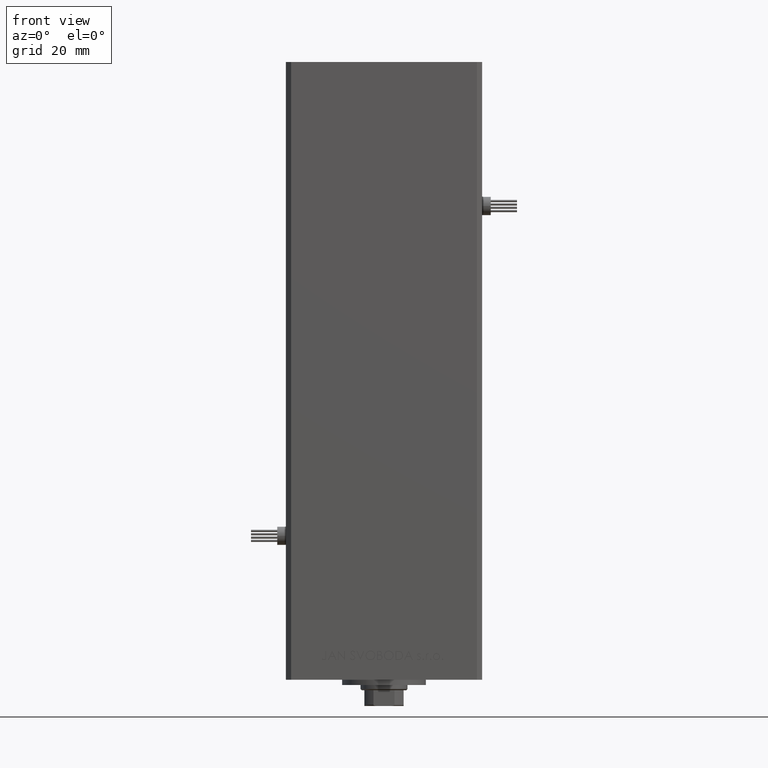
[diagram: clean part render]
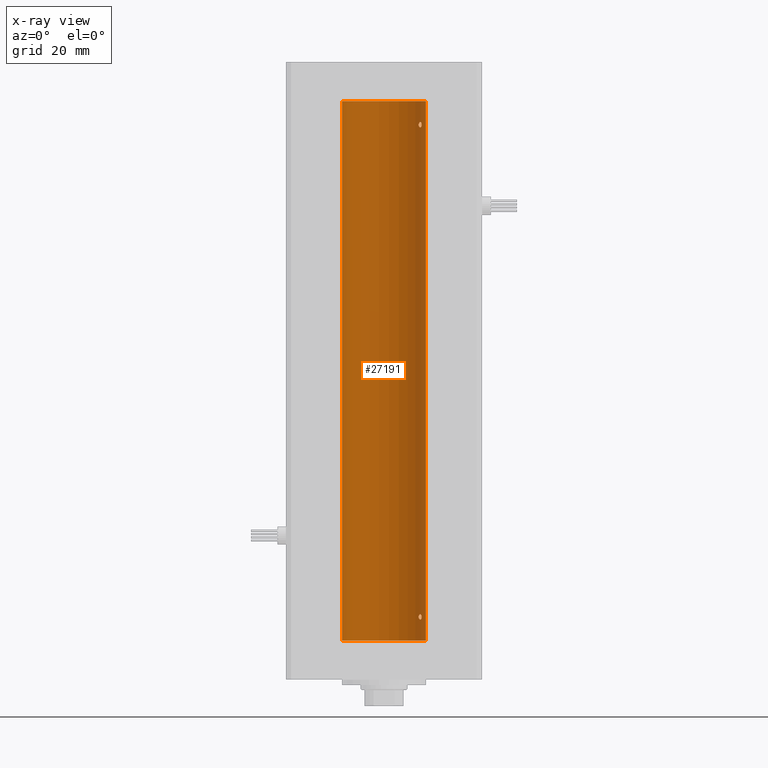
[diagram: x-ray — body ghosted, one internal face saturated and labeled with its STEP entity id]
A machine part, front view, then the same camera in x-ray: the body is ghosted and one INTERNAL B-rep face — a face not visible from any outside direction — is saturated and labeled: STEP entity #27191.
In plain terms, the highlighted cylindrical surface (partial cylindrical patch) has radius 16 mm, axis along (-0, -0, -1).
Its self-contained STEP definition (entity closure, byte-faithful):
#601 = CARTESIAN_POINT ( 'NONE',  ( 13.77746685470184929, 8.136441676695655545, 196.0017131429554524 ) ) ;
#855 = CARTESIAN_POINT ( 'NONE',  ( 14.27574973237574874, 7.225997637813491359, 196.3530782107463324 ) ) ;
#1086 = CARTESIAN_POINT ( 'NONE',  ( 13.32447566991143617, 8.857922402414489582, 197.5314381199037541 ) ) ;
#1112 = CARTESIAN_POINT ( 'NONE',  ( 14.38749456993875775, 6.999999999998771649, 196.9999999999994600 ) ) ;
#1595 = CARTESIAN_POINT ( 'NONE',  ( 14.38749456993835807, 6.999999999999900524, 197.1411069770375093 ) ) ;
#2099 = DIRECTION ( 'NONE',  ( -0.000000000000000000, -0.000000000000000000, -1.000000000000000000 ) ) ;
#2127 = CARTESIAN_POINT ( 'NONE',  ( 13.98853479819182866, 7.771757428685186042, 198.0036593920346775 ) ) ;
#2164 = B_SPLINE_CURVE_WITH_KNOTS ( 'NONE', 3,
 ( #28622, #12244, #15410, #23866, #27835, #47961, #11720, #15674, #7470, #47707, #43997, #11466, #7728, #27576, #32325, #32068, #28093, #19904, #40022, #43740 ),
 .UNSPECIFIED., .F., .F.,
 ( 4, 2, 2, 2, 2, 2, 2, 2, 2, 4 ),
 ( 0.000000000000000000, 0.0004221896201403055413, 0.0008443792402806110826, 0.001266568860420916624, 0.001688758480561222165, 0.002110948100701527490, 0.002533137720841833248, 0.002955327340982138572, 0.003166422151052288633, 0.003377516961122438259 ),
 .UNSPECIFIED. ) ;
#2316 = CARTESIAN_POINT ( 'NONE',  ( 13.32447566991143439, 8.857922402414480700, 9.531438119903825168 ) ) ;
#2570 = CARTESIAN_POINT ( 'NONE',  ( 13.55739033881265065, 8.499771822136686694, 9.902983336413296200 ) ) ;
#3303 = CIRCLE ( 'NONE', #36267, 16.00000000000000000 ) ;
#3354 = CARTESIAN_POINT ( 'NONE',  ( 14.27601081693604712, 7.225489892961965310, 9.646446674983275571 ) ) ;
#3867 = CARTESIAN_POINT ( 'NONE',  ( 13.22875655532295625, 9.000000000000000000, 9.142659515501296852 ) ) ;
#4095 = VERTEX_POINT ( 'NONE', #50388 ) ;
#4285 = CARTESIAN_POINT ( 'NONE',  ( 13.49787029139622696, 8.591848682073997878, 196.1838145871425638 ) ) ;
#4553 = CARTESIAN_POINT ( 'NONE',  ( 13.32443414199769194, 8.857985377928093484, 196.4686058303161076 ) ) ;
#4809 = CARTESIAN_POINT ( 'NONE',  ( 14.17516445690067250, 7.421373518623910037, 196.1736956655493884 ) ) ;
#5064 = CARTESIAN_POINT ( 'NONE',  ( 14.36932461189096877, 7.037242368448795915, 196.7207139776694191 ) ) ;
#5143 = EDGE_CURVE ( 'NONE', #4095, #29154, #42732, .T. ) ;
#5194 = CARTESIAN_POINT ( 'NONE',  ( 0.000000000000000000, 0.000000000000000000, 0.000000000000000000 ) ) ;
#5463 = VERTEX_POINT ( 'NONE', #27216 ) ;
#5553 = CARTESIAN_POINT ( 'NONE',  ( 13.22875655532295092, 8.999999999999994671, 197.1426595155012365 ) ) ;
#6413 = VERTEX_POINT ( 'NONE', #34130 ) ;
#6719 = CARTESIAN_POINT ( 'NONE',  ( -16.00000000000000000, 0.000000000000000000, 206.0000000000000000 ) ) ;
#7470 = CARTESIAN_POINT ( 'NONE',  ( 13.77746685470184040, 8.136441676695669756, 8.001713142955473757 ) ) ;
#7728 = CARTESIAN_POINT ( 'NONE',  ( 14.17516445690067428, 7.421373518623910037, 8.173695665549439937 ) ) ;
#8792 = CARTESIAN_POINT ( 'NONE',  ( 13.92009581174527355, 7.889943515799701323, 195.9984609092137759 ) ) ;
#9123 = ORIENTED_EDGE ( 'NONE', *, *, #31699, .F. ) ;
#10037 = CARTESIAN_POINT ( 'NONE',  ( 16.00000000000000000, 1.959434878635765131E-15, 206.0000000000000000 ) ) ;
#10255 = EDGE_CURVE ( 'NONE', #6413, #40658, #17436, .T. ) ;
#10524 = CARTESIAN_POINT ( 'NONE',  ( 14.38749456993835807, 6.999999999999894307, 9.141106977037484427 ) ) ;
#11309 = CARTESIAN_POINT ( 'NONE',  ( 14.38749456993875953, 6.999999999998769873, 8.999999999999467093 ) ) ;
#11432 = ORIENTED_EDGE ( 'NONE', *, *, #14235, .F. ) ;
#11466 = CARTESIAN_POINT ( 'NONE',  ( 14.11701305531884287, 7.531808851198022126, 8.107366783090686368 ) ) ;
#11720 = CARTESIAN_POINT ( 'NONE',  ( 13.56526576050683452, 8.485384079562178883, 8.116990538131117816 ) ) ;
#12244 = CARTESIAN_POINT ( 'NONE',  ( 13.22875655532296157, 9.000000000000000000, 8.857026260935734641 ) ) ;
#14235 = EDGE_CURVE ( 'NONE', #29792, #5463, #15709, .T. ) ;
#15021 = CYLINDRICAL_SURFACE ( 'NONE', #42349, 16.00000000000000000 ) ;
#15410 = CARTESIAN_POINT ( 'NONE',  ( 13.25010819131475159, 8.968783812673564171, 8.717198662283735189 ) ) ;
#15674 = CARTESIAN_POINT ( 'NONE',  ( 13.70633586603034715, 8.255576010093811590, 8.025328610501505366 ) ) ;
#15709 = B_SPLINE_CURVE_WITH_KNOTS ( 'NONE', 3,
 ( #11309, #10524, #27424, #39606, #3354, #51770, #26372, #38817, #2570, #22414, #2316, #18697, #3867, #20525 ),
 .UNSPECIFIED., .F., .F.,
 ( 4, 2, 2, 2, 2, 2, 4 ),
 ( 0.003377516961122438259, 0.003798778705083848996, 0.004220040449045259733, 0.005062563936968083808, 0.005905087424890908751, 0.006326349168852319488, 0.006747610912813730225 ),
 .UNSPECIFIED. ) ;
#15795 = DIRECTION ( 'NONE',  ( -0.000000000000000000, -0.000000000000000000, -1.000000000000000000 ) ) ;
#16717 = CARTESIAN_POINT ( 'NONE',  ( 13.22875655532295802, 8.999999999999998224, 196.8570262609357258 ) ) ;
#17436 = LINE ( 'NONE', #10037, #41127 ) ;
#17718 = CARTESIAN_POINT ( 'NONE',  ( 14.37260515874679179, 7.030802976542521954, 197.2824317985810865 ) ) ;
#18154 = B_SPLINE_CURVE_WITH_KNOTS ( 'NONE', 3,
 ( #44787, #16717, #29152, #4553, #29399, #4285, #32333, #20693, #601, #8792, #24920, #41072, #4809, #855, #45315, #41325, #5064, #21204, #37351, #1112 ),
 .UNSPECIFIED., .F., .F.,
 ( 4, 2, 2, 2, 2, 2, 2, 2, 2, 4 ),
 ( 2.818592028051833686E-17, 0.0004221896201403299359, 0.0008443792402806316825, 0.001266568860420933538, 0.001688758480561235176, 0.002110948100701536597, 0.002533137720841838886, 0.002955327340982140307, 0.003166422151052290801, 0.003377516961122441295 ),
 .UNSPECIFIED. ) ;
#18252 = CARTESIAN_POINT ( 'NONE',  ( 14.12440581436492515, 7.519967855344591001, 197.9168456675479604 ) ) ;
#18697 = CARTESIAN_POINT ( 'NONE',  ( 13.25022586032984329, 8.968609469449802418, 9.283289638962903823 ) ) ;
#18715 = ORIENTED_EDGE ( 'NONE', *, *, #10255, .F. ) ;
#19224 = ORIENTED_EDGE ( 'NONE', *, *, #19451, .F. ) ;
#19303 = CARTESIAN_POINT ( 'NONE',  ( 0.000000000000000000, 0.000000000000000000, 206.0000000000000000 ) ) ;
#19451 = EDGE_CURVE ( 'NONE', #5463, #29792, #2164, .T. ) ;
#19769 = CARTESIAN_POINT ( 'NONE',  ( 0.000000000000000000, 0.000000000000000000, 206.0000000000000000 ) ) ;
#19904 = CARTESIAN_POINT ( 'NONE',  ( 14.38374727663542707, 7.007716049903074840, 8.857607929436484895 ) ) ;
#20110 = EDGE_CURVE ( 'NONE', #40658, #29154, #3303, .T. ) ;
#20125 = ORIENTED_EDGE ( 'NONE', *, *, #23554, .F. ) ;
#20525 = CARTESIAN_POINT ( 'NONE',  ( 13.22875655532295447, 8.999999999999998224, 8.999999999999994671 ) ) ;
#20693 = CARTESIAN_POINT ( 'NONE',  ( 13.70633586603035781, 8.255576010093792050, 196.0253286105014752 ) ) ;
#21079 = DIRECTION ( 'NONE',  ( -0.000000000000000000, 0.000000000000000000, 1.000000000000000000 ) ) ;
#21136 = CARTESIAN_POINT ( 'NONE',  ( 13.22875655532295447, 8.999999999999996447, 196.9999999999999432 ) ) ;
#21204 = CARTESIAN_POINT ( 'NONE',  ( 14.38374727663542707, 7.007716049903077504, 196.8576079294364547 ) ) ;
#22414 = CARTESIAN_POINT ( 'NONE',  ( 13.37722806521492025, 8.778496895713756132, 9.640492215702138878 ) ) ;
#23554 = EDGE_CURVE ( 'NONE', #51572, #23812, #18154, .T. ) ;
#23812 = VERTEX_POINT ( 'NONE', #48945 ) ;
#23866 = CARTESIAN_POINT ( 'NONE',  ( 13.32443414199768839, 8.857985377928104143, 8.468605830316136007 ) ) ;
#24920 = CARTESIAN_POINT ( 'NONE',  ( 13.98799506618805211, 7.768796316246563194, 196.0189078186198515 ) ) ;
#24949 = ORIENTED_EDGE ( 'NONE', *, *, #50554, .T. ) ;
#25702 = VECTOR ( 'NONE', #31064, 1000.000000000000000 ) ;
#26372 = CARTESIAN_POINT ( 'NONE',  ( 13.98853479819183043, 7.771757428685174496, 10.00365939203466681 ) ) ;
#27175 = FACE_BOUND ( 'NONE', #46600, .T. ) ;
#27191 = ADVANCED_FACE ( 'NONE', ( #48084, #39623, #27175 ), #15021, .F. ) ;
#27216 = CARTESIAN_POINT ( 'NONE',  ( 13.22875655532295447, 8.999999999999998224, 8.999999999999994671 ) ) ;
#27424 = CARTESIAN_POINT ( 'NONE',  ( 14.37260515874679534, 7.030802976542521954, 9.282431798581109561 ) ) ;
#27576 = CARTESIAN_POINT ( 'NONE',  ( 14.27574973237574696, 7.225997637813494023, 8.353078210746339494 ) ) ;
#27835 = CARTESIAN_POINT ( 'NONE',  ( 13.37714181818049575, 8.778635597591465611, 8.359554766746297716 ) ) ;
#28093 = CARTESIAN_POINT ( 'NONE',  ( 14.36932461189096877, 7.037242368448794139, 8.720713977669424466 ) ) ;
#28229 = DIRECTION ( 'NONE',  ( -1.000000000000000000, 0.000000000000000000, 0.000000000000000000 ) ) ;
#28622 = CARTESIAN_POINT ( 'NONE',  ( 13.22875655532295447, 8.999999999999998224, 8.999999999999994671 ) ) ;
#29152 = CARTESIAN_POINT ( 'NONE',  ( 13.25010819131476048, 8.968783812673557065, 196.7171986622837210 ) ) ;
#29154 = VERTEX_POINT ( 'NONE', #39052 ) ;
#29399 = CARTESIAN_POINT ( 'NONE',  ( 13.37714181818050641, 8.778635597591444295, 196.3595547667462711 ) ) ;
#29792 = VERTEX_POINT ( 'NONE', #36511 ) ;
#29892 = CARTESIAN_POINT ( 'NONE',  ( 13.22875655532295447, 8.999999999999996447, 196.9999999999999432 ) ) ;
#31064 = DIRECTION ( 'NONE',  ( -0.000000000000000000, -0.000000000000000000, -1.000000000000000000 ) ) ;
#31699 = EDGE_CURVE ( 'NONE', #23812, #51572, #45841, .T. ) ;
#32068 = CARTESIAN_POINT ( 'NONE',  ( 14.35867515080208356, 7.058999333127636611, 8.654421198538130966 ) ) ;
#32078 = ORIENTED_EDGE ( 'NONE', *, *, #5143, .T. ) ;
#32325 = CARTESIAN_POINT ( 'NONE',  ( 14.31615587311060445, 7.145052533203043232, 8.462698705274526390 ) ) ;
#32333 = CARTESIAN_POINT ( 'NONE',  ( 13.56526576050684518, 8.485384079562161119, 196.1169905381311196 ) ) ;
#33857 = CARTESIAN_POINT ( 'NONE',  ( 13.55739033881264710, 8.499771822136690247, 197.9029833364132855 ) ) ;
#33982 = AXIS2_PLACEMENT_3D ( 'NONE', #19303, #50799, #47102 ) ;
#34130 = CARTESIAN_POINT ( 'NONE',  ( 16.00000000000000000, 1.959434878635765131E-15, 206.0000000000000000 ) ) ;
#36267 = AXIS2_PLACEMENT_3D ( 'NONE', #5194, #21079, #48881 ) ;
#36511 = CARTESIAN_POINT ( 'NONE',  ( 14.38749456993875953, 6.999999999998769873, 8.999999999999467093 ) ) ;
#36522 = CIRCLE ( 'NONE', #33982, 16.00000000000000000 ) ;
#37331 = CARTESIAN_POINT ( 'NONE',  ( 14.31678893103185679, 7.143775209822727845, 197.5347800480706155 ) ) ;
#37351 = CARTESIAN_POINT ( 'NONE',  ( 14.38749456993829057, 7.000000000000029310, 196.9292911095188003 ) ) ;
#37585 = CARTESIAN_POINT ( 'NONE',  ( 13.70635209652259334, 8.259251269739747769, 197.9961002086728001 ) ) ;
#38573 = EDGE_LOOP ( 'NONE', ( #18715, #24949, #32078, #48195 ) ) ;
#38817 = CARTESIAN_POINT ( 'NONE',  ( 13.70635209652260222, 8.259251269739738888, 9.996100208672867637 ) ) ;
#39052 = CARTESIAN_POINT ( 'NONE',  ( -16.00000000000000000, 0.000000000000000000, 0.000000000000000000 ) ) ;
#39606 = CARTESIAN_POINT ( 'NONE',  ( 14.31678893103186390, 7.143775209822729622, 9.534780048070684799 ) ) ;
#39623 = FACE_BOUND ( 'NONE', #48926, .T. ) ;
#40022 = CARTESIAN_POINT ( 'NONE',  ( 14.38749456993828879, 7.000000000000026645, 8.929291109518763037 ) ) ;
#40658 = VERTEX_POINT ( 'NONE', #42476 ) ;
#41072 = CARTESIAN_POINT ( 'NONE',  ( 14.11701305531884465, 7.531808851198014132, 196.1073667830906402 ) ) ;
#41127 = VECTOR ( 'NONE', #2099, 1000.000000000000000 ) ;
#41325 = CARTESIAN_POINT ( 'NONE',  ( 14.35867515080208712, 7.058999333127631282, 196.6544211985381594 ) ) ;
#42349 = AXIS2_PLACEMENT_3D ( 'NONE', #19769, #15795, #28229 ) ;
#42476 = CARTESIAN_POINT ( 'NONE',  ( 16.00000000000000000, 1.959434878635765131E-15, 0.000000000000000000 ) ) ;
#42732 = LINE ( 'NONE', #6719, #25702 ) ;
#43740 = CARTESIAN_POINT ( 'NONE',  ( 14.38749456993875953, 6.999999999998769873, 8.999999999999467093 ) ) ;
#43997 = CARTESIAN_POINT ( 'NONE',  ( 13.98799506618804855, 7.768796316246572964, 8.018907818619863903 ) ) ;
#44787 = CARTESIAN_POINT ( 'NONE',  ( 13.22875655532295447, 8.999999999999996447, 196.9999999999999432 ) ) ;
#45315 = CARTESIAN_POINT ( 'NONE',  ( 14.31615587311060978, 7.145052533203036127, 196.4626987052745903 ) ) ;
#45795 = CARTESIAN_POINT ( 'NONE',  ( 13.37722806521492203, 8.778496895713763237, 197.6404922157021247 ) ) ;
#45841 = B_SPLINE_CURVE_WITH_KNOTS ( 'NONE', 3,
 ( #49747, #1595, #17718, #37331, #49499, #18252, #2127, #37585, #33857, #45795, #1086, #50531, #5553, #29892 ),
 .UNSPECIFIED., .F., .F.,
 ( 4, 2, 2, 2, 2, 2, 4 ),
 ( 0.003377516961122441295, 0.003798778705083836419, 0.004220040449045231977, 0.005062563936968072532, 0.005905087424890913088, 0.006326349168852335100, 0.006747610912813756245 ),
 .UNSPECIFIED. ) ;
#46600 = EDGE_LOOP ( 'NONE', ( #19224, #11432 ) ) ;
#47102 = DIRECTION ( 'NONE',  ( 1.000000000000000000, 0.000000000000000000, 0.000000000000000000 ) ) ;
#47707 = CARTESIAN_POINT ( 'NONE',  ( 13.92009581174526822, 7.889943515799717311, 7.998460909213807035 ) ) ;
#47961 = CARTESIAN_POINT ( 'NONE',  ( 13.49787029139620920, 8.591848682074017418, 8.183814587142569152 ) ) ;
#48084 = FACE_OUTER_BOUND ( 'NONE', #38573, .T. ) ;
#48195 = ORIENTED_EDGE ( 'NONE', *, *, #20110, .F. ) ;
#48881 = DIRECTION ( 'NONE',  ( 1.000000000000000000, 0.000000000000000000, 0.000000000000000000 ) ) ;
#48926 = EDGE_LOOP ( 'NONE', ( #20125, #9123 ) ) ;
#48945 = CARTESIAN_POINT ( 'NONE',  ( 14.38749456993875775, 6.999999999998771649, 196.9999999999994600 ) ) ;
#49499 = CARTESIAN_POINT ( 'NONE',  ( 14.27601081693604179, 7.225489892961972416, 197.6464466749832525 ) ) ;
#49747 = CARTESIAN_POINT ( 'NONE',  ( 14.38749456993875775, 6.999999999998771649, 196.9999999999994600 ) ) ;
#50388 = CARTESIAN_POINT ( 'NONE',  ( -16.00000000000000000, 0.000000000000000000, 206.0000000000000000 ) ) ;
#50531 = CARTESIAN_POINT ( 'NONE',  ( 13.25022586032983618, 8.968609469449805971, 197.2832896389629127 ) ) ;
#50554 = EDGE_CURVE ( 'NONE', #6413, #4095, #36522, .T. ) ;
#50799 = DIRECTION ( 'NONE',  ( -0.000000000000000000, 0.000000000000000000, 1.000000000000000000 ) ) ;
#51572 = VERTEX_POINT ( 'NONE', #21136 ) ;
#51770 = CARTESIAN_POINT ( 'NONE',  ( 14.12440581436493225, 7.519967855344579455, 9.916845667547992349 ) ) ;